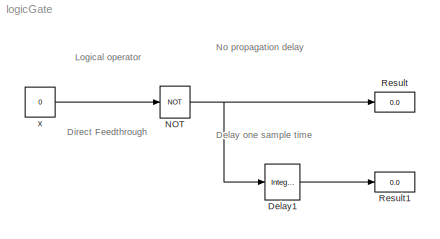
MODEL logicGate
KIND model
BLOCK [Reference] Delay1  REF=simulink/Discrete/Integer Delay
  NumDelays = 1
  Ports = [1, 1]
  SourceBlock = simulink/Discrete/Integer Delay
  SourceType = Integer Delay
  samptime = -1
  vinit = 0
BLOCK [Logic] NOT
  AllPortsSameDT = off
  IconShape = distinctive
  Operator = NOT
  OutDataTypeMode = boolean
  OutDataTypeStr = boolean
  Ports = [1, 1]
BLOCK [Display] Result
  Decimation = 1
  Ports = [1]
BLOCK [Display] Result1
  Decimation = 1
  Ports = [1]
BLOCK [Constant] x
  OutDataTypeMode = int8
  OutDataTypeStr = int8
  OutMax = 7
  OutMin = -8
  SampleTime = 1
  Value = 0
ANNOTATION (root): Delay one sample time
ANNOTATION (root): Direct Feedthrough
ANNOTATION (root): Logical operator
ANNOTATION (root): No propagation delay
LINE Delay1:1 -> Result1:1
NET NOT:1 -> Delay1:1, Result:1
LINE x:1 -> NOT:1
note: NET lines group one-source signal fan-out (src -> all destinations, sorted); 1:1 wires keep LINE
